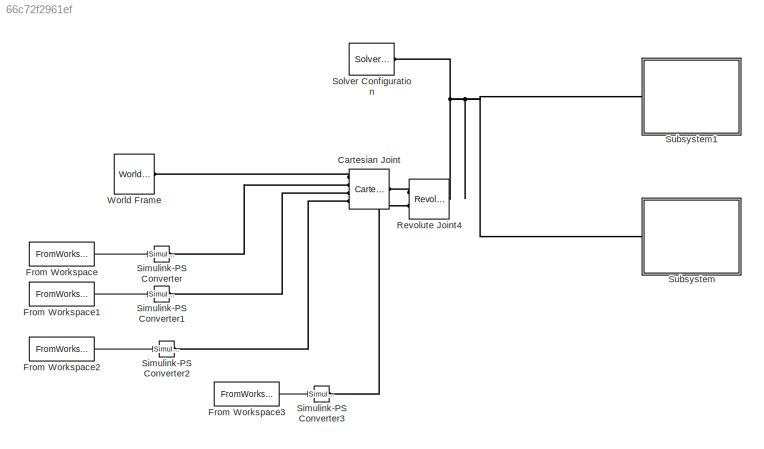
MODEL slx_66c72f2961ef
KIND model
CONFIG AbsTol = auto
CONFIG EnableMultiTasking = off
CONFIG FixedStep = auto
CONFIG MaxStep = auto
CONFIG MinStep = auto
CONFIG RelTol = 1e-3
CONFIG SampleTimeConstraint = Unconstrained
CONFIG Solver = VariableStepAuto
CONFIG SolverName = VariableStepAuto
CONFIG StartTime = 0.0
CONFIG StopTime = 13.95
BLOCK [Reference] Cartesian Joint  REF=sm_lib/Joints/Cartesian
Joint
  Ports = [0, 0, 0, 0, 0, 4, 1]
  SourceBlock = sm_lib/Joints/Cartesian\nJoint
  SourceProductBaseCode = MS
  SourceProductName = Simscape Multibody
  SourceType = Cartesian\nJoint
BLOCK [FromWorkspace] From Workspace
  SampleTime = 0
  VariableName = Hip_x
  ZeroCross = on
BLOCK [FromWorkspace] From Workspace1
  SampleTime = 0
  VariableName = Hip_y
  ZeroCross = on
BLOCK [FromWorkspace] From Workspace2
  SampleTime = 0
  VariableName = Hip_z
  ZeroCross = on
BLOCK [FromWorkspace] From Workspace3
  SampleTime = 0
  VariableName = Hip_yaw
  ZeroCross = on
BLOCK [Reference] Revolute Joint4  REF=sm_lib/Joints/Revolute Joint
  Ports = [0, 0, 0, 0, 0, 2, 1]
  SourceBlock = sm_lib/Joints/Revolute Joint
  SourceProductBaseCode = MS
  SourceProductName = Simscape Multibody
  SourceType = Revolute Joint
BLOCK [Reference] Simulink-PS Converter  REF=nesl_utility/Simulink-PS
Converter
  Ports = [1, 0, 0, 0, 0, 0, 1]
  SourceBlock = nesl_utility/Simulink-PS\nConverter
  SourceProductBaseCode = SS
  SourceProductName = Simscape
  SourceType = Simulink-PS\nConverter
BLOCK [Reference] Simulink-PS Converter1  REF=nesl_utility/Simulink-PS
Converter
  Ports = [1, 0, 0, 0, 0, 0, 1]
  SourceBlock = nesl_utility/Simulink-PS\nConverter
  SourceProductBaseCode = SS
  SourceProductName = Simscape
  SourceType = Simulink-PS\nConverter
BLOCK [Reference] Simulink-PS Converter2  REF=nesl_utility/Simulink-PS
Converter
  Ports = [1, 0, 0, 0, 0, 0, 1]
  SourceBlock = nesl_utility/Simulink-PS\nConverter
  SourceProductBaseCode = SS
  SourceProductName = Simscape
  SourceType = Simulink-PS\nConverter
BLOCK [Reference] Simulink-PS Converter3  REF=nesl_utility/Simulink-PS
Converter
  Ports = [1, 0, 0, 0, 0, 0, 1]
  SourceBlock = nesl_utility/Simulink-PS\nConverter
  SourceProductBaseCode = SS
  SourceProductName = Simscape
  SourceType = Simulink-PS\nConverter
BLOCK [Reference] Solver Configuration  REF=nesl_utility/Solver
Configuration
  Ports = [0, 0, 0, 0, 0, 0, 1]
  SourceBlock = nesl_utility/Solver\nConfiguration
  SourceProductBaseCode = SS
  SourceProductName = Simscape
  SourceType = Solver\nConfiguration
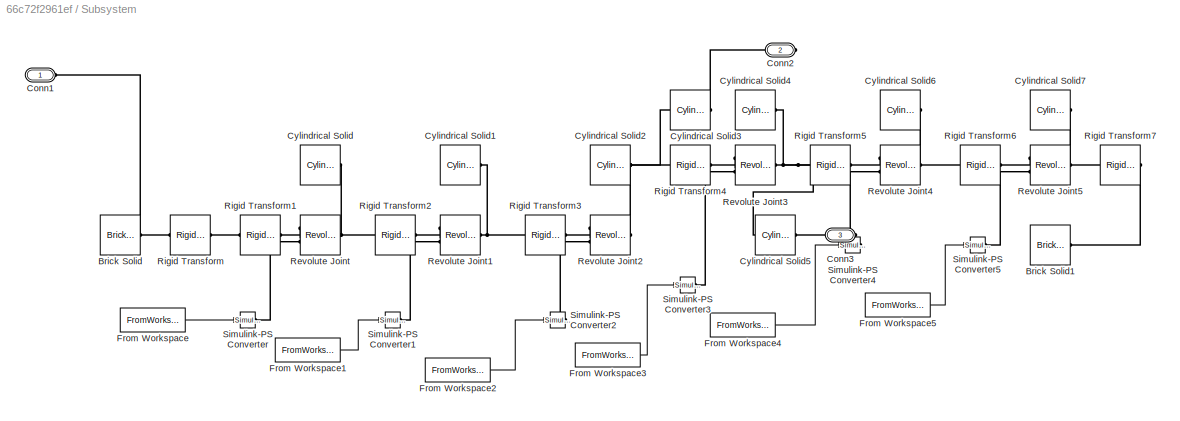
BLOCK [SubSystem] Subsystem
  Ports = [0, 0, 0, 0, 0, 1, 2]
  RequestExecContextInheritance = off
BLOCK [Reference] Subsystem/Brick Solid  REF=sm_lib/Body Elements/Brick Solid
  Ports = [0, 0, 0, 0, 0, 0, 1]
  SourceBlock = sm_lib/Body Elements/Brick Solid
  SourceProductBaseCode = MS
  SourceProductName = Simscape Multibody
  SourceType = Brick Solid
BLOCK [Reference] Subsystem/Brick Solid1  REF=sm_lib/Body Elements/Brick Solid
  Ports = [0, 0, 0, 0, 0, 0, 1]
  SourceBlock = sm_lib/Body Elements/Brick Solid
  SourceProductBaseCode = MS
  SourceProductName = Simscape Multibody
  SourceType = Brick Solid
BLOCK [PMIOPort] Subsystem/Conn1
  Side = Left
BLOCK [PMIOPort] Subsystem/Conn2
  Port = 2
  Side = Right
BLOCK [PMIOPort] Subsystem/Conn3
  Port = 3
  Side = Right
BLOCK [Reference] Subsystem/Cylindrical Solid  REF=sm_lib/Body Elements/Cylindrical Solid
  Ports = [0, 0, 0, 0, 0, 0, 1]
  SourceBlock = sm_lib/Body Elements/Cylindrical Solid
  SourceProductBaseCode = MS
  SourceProductName = Simscape Multibody
  SourceType = Cylindrical Solid
BLOCK [Reference] Subsystem/Cylindrical Solid1  REF=sm_lib/Body Elements/Cylindrical Solid
  Ports = [0, 0, 0, 0, 0, 0, 1]
  SourceBlock = sm_lib/Body Elements/Cylindrical Solid
  SourceProductBaseCode = MS
  SourceProductName = Simscape Multibody
  SourceType = Cylindrical Solid
BLOCK [Reference] Subsystem/Cylindrical Solid2  REF=sm_lib/Body Elements/Cylindrical Solid
  Ports = [0, 0, 0, 0, 0, 0, 1]
  SourceBlock = sm_lib/Body Elements/Cylindrical Solid
  SourceProductBaseCode = MS
  SourceProductName = Simscape Multibody
  SourceType = Cylindrical Solid
BLOCK [Reference] Subsystem/Cylindrical Solid3  REF=sm_lib/Body Elements/Cylindrical Solid
  Ports = [0, 0, 0, 0, 0, 1, 1]
  SourceBlock = sm_lib/Body Elements/Cylindrical Solid
  SourceProductBaseCode = MS
  SourceProductName = Simscape Multibody
  SourceType = Cylindrical Solid
BLOCK [Reference] Subsystem/Cylindrical Solid4  REF=sm_lib/Body Elements/Cylindrical Solid
  Ports = [0, 0, 0, 0, 0, 0, 1]
  SourceBlock = sm_lib/Body Elements/Cylindrical Solid
  SourceProductBaseCode = MS
  SourceProductName = Simscape Multibody
  SourceType = Cylindrical Solid
BLOCK [Reference] Subsystem/Cylindrical Solid5  REF=sm_lib/Body Elements/Cylindrical Solid
  Ports = [0, 0, 0, 0, 0, 1, 1]
  SourceBlock = sm_lib/Body Elements/Cylindrical Solid
  SourceProductBaseCode = MS
  SourceProductName = Simscape Multibody
  SourceType = Cylindrical Solid
BLOCK [Reference] Subsystem/Cylindrical Solid6  REF=sm_lib/Body Elements/Cylindrical Solid
  Ports = [0, 0, 0, 0, 0, 0, 1]
  SourceBlock = sm_lib/Body Elements/Cylindrical Solid
  SourceProductBaseCode = MS
  SourceProductName = Simscape Multibody
  SourceType = Cylindrical Solid
BLOCK [Reference] Subsystem/Cylindrical Solid7  REF=sm_lib/Body Elements/Cylindrical Solid
  Ports = [0, 0, 0, 0, 0, 0, 1]
  SourceBlock = sm_lib/Body Elements/Cylindrical Solid
  SourceProductBaseCode = MS
  SourceProductName = Simscape Multibody
  SourceType = Cylindrical Solid
BLOCK [FromWorkspace] Subsystem/From Workspace
  SampleTime = 0
  VariableName = Q_2
  ZeroCross = on
BLOCK [FromWorkspace] Subsystem/From Workspace1
  SampleTime = 0
  VariableName = Q_3
  ZeroCross = on
BLOCK [FromWorkspace] Subsystem/From Workspace2
  SampleTime = 0
  VariableName = Q_4
  ZeroCross = on
BLOCK [FromWorkspace] Subsystem/From Workspace3
  SampleTime = 0
  VariableName = Q_5
  ZeroCross = on
BLOCK [FromWorkspace] Subsystem/From Workspace4
  SampleTime = 0
  VariableName = Q_6
  ZeroCross = on
BLOCK [FromWorkspace] Subsystem/From Workspace5
  SampleTime = 0
  VariableName = Q_7
  ZeroCross = on
BLOCK [Reference] Subsystem/Revolute Joint  REF=sm_lib/Joints/Revolute Joint
  Ports = [0, 0, 0, 0, 0, 2, 1]
  SourceBlock = sm_lib/Joints/Revolute Joint
  SourceProductBaseCode = MS
  SourceProductName = Simscape Multibody
  SourceType = Revolute Joint
BLOCK [Reference] Subsystem/Revolute Joint1  REF=sm_lib/Joints/Revolute Joint
  Ports = [0, 0, 0, 0, 0, 2, 1]
  SourceBlock = sm_lib/Joints/Revolute Joint
  SourceProductBaseCode = MS
  SourceProductName = Simscape Multibody
  SourceType = Revolute Joint
BLOCK [Reference] Subsystem/Revolute Joint2  REF=sm_lib/Joints/Revolute Joint
  Ports = [0, 0, 0, 0, 0, 2, 1]
  SourceBlock = sm_lib/Joints/Revolute Joint
  SourceProductBaseCode = MS
  SourceProductName = Simscape Multibody
  SourceType = Revolute Joint
BLOCK [Reference] Subsystem/Revolute Joint3  REF=sm_lib/Joints/Revolute Joint
  Ports = [0, 0, 0, 0, 0, 2, 1]
  SourceBlock = sm_lib/Joints/Revolute Joint
  SourceProductBaseCode = MS
  SourceProductName = Simscape Multibody
  SourceType = Revolute Joint
BLOCK [Reference] Subsystem/Revolute Joint4  REF=sm_lib/Joints/Revolute Joint
  Ports = [0, 0, 0, 0, 0, 2, 1]
  SourceBlock = sm_lib/Joints/Revolute Joint
  SourceProductBaseCode = MS
  SourceProductName = Simscape Multibody
  SourceType = Revolute Joint
BLOCK [Reference] Subsystem/Revolute Joint5  REF=sm_lib/Joints/Revolute Joint
  Ports = [0, 0, 0, 0, 0, 2, 1]
  SourceBlock = sm_lib/Joints/Revolute Joint
  SourceProductBaseCode = MS
  SourceProductName = Simscape Multibody
  SourceType = Revolute Joint
BLOCK [Reference] Subsystem/Rigid Transform  REF=sm_lib/Frames and
Transforms/Rigid
Transform
  Ports = [0, 0, 0, 0, 0, 1, 1]
  SourceBlock = sm_lib/Frames and\nTransforms/Rigid\nTransform
  SourceProductBaseCode = MS
  SourceProductName = Simscape Multibody
  SourceType = Rigid\nTransform
BLOCK [Reference] Subsystem/Rigid Transform1  REF=sm_lib/Frames and
Transforms/Rigid
Transform
  Ports = [0, 0, 0, 0, 0, 1, 1]
  SourceBlock = sm_lib/Frames and\nTransforms/Rigid\nTransform
  SourceProductBaseCode = MS
  SourceProductName = Simscape Multibody
  SourceType = Rigid\nTransform
BLOCK [Reference] Subsystem/Rigid Transform2  REF=sm_lib/Frames and
Transforms/Rigid
Transform
  Ports = [0, 0, 0, 0, 0, 1, 1]
  SourceBlock = sm_lib/Frames and\nTransforms/Rigid\nTransform
  SourceProductBaseCode = MS
  SourceProductName = Simscape Multibody
  SourceType = Rigid\nTransform
BLOCK [Reference] Subsystem/Rigid Transform3  REF=sm_lib/Frames and
Transforms/Rigid
Transform
  Ports = [0, 0, 0, 0, 0, 1, 1]
  SourceBlock = sm_lib/Frames and\nTransforms/Rigid\nTransform
  SourceProductBaseCode = MS
  SourceProductName = Simscape Multibody
  SourceType = Rigid\nTransform
BLOCK [Reference] Subsystem/Rigid Transform4  REF=sm_lib/Frames and
Transforms/Rigid
Transform
  Ports = [0, 0, 0, 0, 0, 1, 1]
  SourceBlock = sm_lib/Frames and\nTransforms/Rigid\nTransform
  SourceProductBaseCode = MS
  SourceProductName = Simscape Multibody
  SourceType = Rigid\nTransform
BLOCK [Reference] Subsystem/Rigid Transform5  REF=sm_lib/Frames and
Transforms/Rigid
Transform
  Ports = [0, 0, 0, 0, 0, 1, 1]
  SourceBlock = sm_lib/Frames and\nTransforms/Rigid\nTransform
  SourceProductBaseCode = MS
  SourceProductName = Simscape Multibody
  SourceType = Rigid\nTransform
BLOCK [Reference] Subsystem/Rigid Transform6  REF=sm_lib/Frames and
Transforms/Rigid
Transform
  Ports = [0, 0, 0, 0, 0, 1, 1]
  SourceBlock = sm_lib/Frames and\nTransforms/Rigid\nTransform
  SourceProductBaseCode = MS
  SourceProductName = Simscape Multibody
  SourceType = Rigid\nTransform
BLOCK [Reference] Subsystem/Rigid Transform7  REF=sm_lib/Frames and
Transforms/Rigid
Transform
  Ports = [0, 0, 0, 0, 0, 1, 1]
  SourceBlock = sm_lib/Frames and\nTransforms/Rigid\nTransform
  SourceProductBaseCode = MS
  SourceProductName = Simscape Multibody
  SourceType = Rigid\nTransform
BLOCK [Reference] Subsystem/Simulink-PS Converter  REF=nesl_utility/Simulink-PS
Converter
  Ports = [1, 0, 0, 0, 0, 0, 1]
  SourceBlock = nesl_utility/Simulink-PS\nConverter
  SourceProductBaseCode = SS
  SourceProductName = Simscape
  SourceType = Simulink-PS\nConverter
BLOCK [Reference] Subsystem/Simulink-PS Converter1  REF=nesl_utility/Simulink-PS
Converter
  Ports = [1, 0, 0, 0, 0, 0, 1]
  SourceBlock = nesl_utility/Simulink-PS\nConverter
  SourceProductBaseCode = SS
  SourceProductName = Simscape
  SourceType = Simulink-PS\nConverter
BLOCK [Reference] Subsystem/Simulink-PS Converter2  REF=nesl_utility/Simulink-PS
Converter
  Ports = [1, 0, 0, 0, 0, 0, 1]
  SourceBlock = nesl_utility/Simulink-PS\nConverter
  SourceProductBaseCode = SS
  SourceProductName = Simscape
  SourceType = Simulink-PS\nConverter
BLOCK [Reference] Subsystem/Simulink-PS Converter3  REF=nesl_utility/Simulink-PS
Converter
  Ports = [1, 0, 0, 0, 0, 0, 1]
  SourceBlock = nesl_utility/Simulink-PS\nConverter
  SourceProductBaseCode = SS
  SourceProductName = Simscape
  SourceType = Simulink-PS\nConverter
BLOCK [Reference] Subsystem/Simulink-PS Converter4  REF=nesl_utility/Simulink-PS
Converter
  Ports = [1, 0, 0, 0, 0, 0, 1]
  SourceBlock = nesl_utility/Simulink-PS\nConverter
  SourceProductBaseCode = SS
  SourceProductName = Simscape
  SourceType = Simulink-PS\nConverter
BLOCK [Reference] Subsystem/Simulink-PS Converter5  REF=nesl_utility/Simulink-PS
Converter
  Ports = [1, 0, 0, 0, 0, 0, 1]
  SourceBlock = nesl_utility/Simulink-PS\nConverter
  SourceProductBaseCode = SS
  SourceProductName = Simscape
  SourceType = Simulink-PS\nConverter
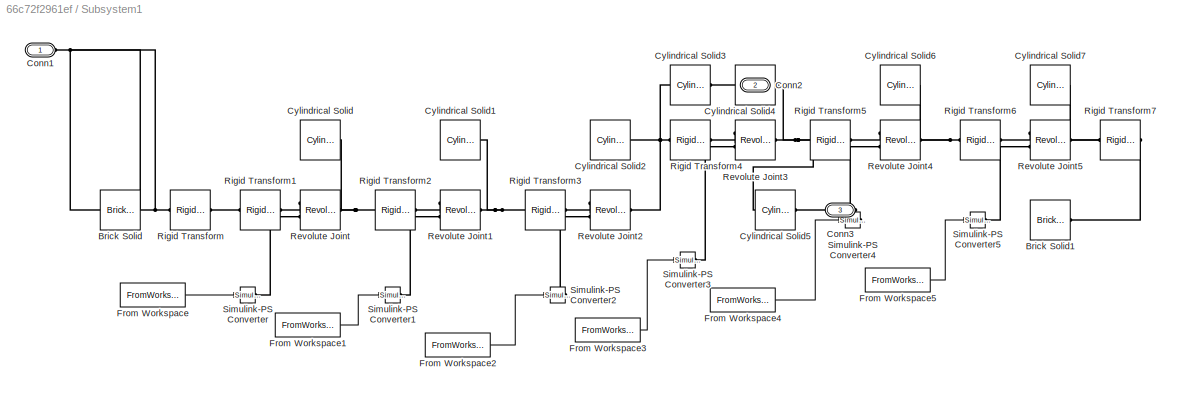
BLOCK [SubSystem] Subsystem1
  Ports = [0, 0, 0, 0, 0, 1, 2]
  RequestExecContextInheritance = off
BLOCK [Reference] Subsystem1/Brick Solid  REF=sm_lib/Body Elements/Brick Solid
  Ports = [0, 0, 0, 0, 0, 0, 1]
  SourceBlock = sm_lib/Body Elements/Brick Solid
  SourceProductBaseCode = MS
  SourceProductName = Simscape Multibody
  SourceType = Brick Solid
BLOCK [Reference] Subsystem1/Brick Solid1  REF=sm_lib/Body Elements/Brick Solid
  Ports = [0, 0, 0, 0, 0, 0, 1]
  SourceBlock = sm_lib/Body Elements/Brick Solid
  SourceProductBaseCode = MS
  SourceProductName = Simscape Multibody
  SourceType = Brick Solid
BLOCK [PMIOPort] Subsystem1/Conn1
  Side = Left
BLOCK [PMIOPort] Subsystem1/Conn2
  Port = 2
  Side = Right
BLOCK [PMIOPort] Subsystem1/Conn3
  Port = 3
  Side = Right
BLOCK [Reference] Subsystem1/Cylindrical Solid  REF=sm_lib/Body Elements/Cylindrical Solid
  Ports = [0, 0, 0, 0, 0, 0, 1]
  SourceBlock = sm_lib/Body Elements/Cylindrical Solid
  SourceProductBaseCode = MS
  SourceProductName = Simscape Multibody
  SourceType = Cylindrical Solid
BLOCK [Reference] Subsystem1/Cylindrical Solid1  REF=sm_lib/Body Elements/Cylindrical Solid
  Ports = [0, 0, 0, 0, 0, 0, 1]
  SourceBlock = sm_lib/Body Elements/Cylindrical Solid
  SourceProductBaseCode = MS
  SourceProductName = Simscape Multibody
  SourceType = Cylindrical Solid
BLOCK [Reference] Subsystem1/Cylindrical Solid2  REF=sm_lib/Body Elements/Cylindrical Solid
  Ports = [0, 0, 0, 0, 0, 0, 1]
  SourceBlock = sm_lib/Body Elements/Cylindrical Solid
  SourceProductBaseCode = MS
  SourceProductName = Simscape Multibody
  SourceType = Cylindrical Solid
BLOCK [Reference] Subsystem1/Cylindrical Solid3  REF=sm_lib/Body Elements/Cylindrical Solid
  Ports = [0, 0, 0, 0, 0, 1, 1]
  SourceBlock = sm_lib/Body Elements/Cylindrical Solid
  SourceProductBaseCode = MS
  SourceProductName = Simscape Multibody
  SourceType = Cylindrical Solid
BLOCK [Reference] Subsystem1/Cylindrical Solid4  REF=sm_lib/Body Elements/Cylindrical Solid
  Ports = [0, 0, 0, 0, 0, 0, 1]
  SourceBlock = sm_lib/Body Elements/Cylindrical Solid
  SourceProductBaseCode = MS
  SourceProductName = Simscape Multibody
  SourceType = Cylindrical Solid
BLOCK [Reference] Subsystem1/Cylindrical Solid5  REF=sm_lib/Body Elements/Cylindrical Solid
  Ports = [0, 0, 0, 0, 0, 1, 1]
  SourceBlock = sm_lib/Body Elements/Cylindrical Solid
  SourceProductBaseCode = MS
  SourceProductName = Simscape Multibody
  SourceType = Cylindrical Solid
BLOCK [Reference] Subsystem1/Cylindrical Solid6  REF=sm_lib/Body Elements/Cylindrical Solid
  Ports = [0, 0, 0, 0, 0, 0, 1]
  SourceBlock = sm_lib/Body Elements/Cylindrical Solid
  SourceProductBaseCode = MS
  SourceProductName = Simscape Multibody
  SourceType = Cylindrical Solid
BLOCK [Reference] Subsystem1/Cylindrical Solid7  REF=sm_lib/Body Elements/Cylindrical Solid
  Ports = [0, 0, 0, 0, 0, 0, 1]
  SourceBlock = sm_lib/Body Elements/Cylindrical Solid
  SourceProductBaseCode = MS
  SourceProductName = Simscape Multibody
  SourceType = Cylindrical Solid
BLOCK [FromWorkspace] Subsystem1/From Workspace
  SampleTime = 0
  VariableName = Q_8
  ZeroCross = on
BLOCK [FromWorkspace] Subsystem1/From Workspace1
  SampleTime = 0
  VariableName = Q_9
  ZeroCross = on
BLOCK [FromWorkspace] Subsystem1/From Workspace2
  SampleTime = 0
  VariableName = Q_10
  ZeroCross = on
BLOCK [FromWorkspace] Subsystem1/From Workspace3
  SampleTime = 0
  VariableName = Q_11
  ZeroCross = on
BLOCK [FromWorkspace] Subsystem1/From Workspace4
  SampleTime = 0
  VariableName = Q_12
  ZeroCross = on
BLOCK [FromWorkspace] Subsystem1/From Workspace5
  SampleTime = 0
  VariableName = Q_13
  ZeroCross = on
BLOCK [Reference] Subsystem1/Revolute Joint  REF=sm_lib/Joints/Revolute Joint
  Ports = [0, 0, 0, 0, 0, 2, 1]
  SourceBlock = sm_lib/Joints/Revolute Joint
  SourceProductBaseCode = MS
  SourceProductName = Simscape Multibody
  SourceType = Revolute Joint
BLOCK [Reference] Subsystem1/Revolute Joint1  REF=sm_lib/Joints/Revolute Joint
  Ports = [0, 0, 0, 0, 0, 2, 1]
  SourceBlock = sm_lib/Joints/Revolute Joint
  SourceProductBaseCode = MS
  SourceProductName = Simscape Multibody
  SourceType = Revolute Joint
BLOCK [Reference] Subsystem1/Revolute Joint2  REF=sm_lib/Joints/Revolute Joint
  Ports = [0, 0, 0, 0, 0, 2, 1]
  SourceBlock = sm_lib/Joints/Revolute Joint
  SourceProductBaseCode = MS
  SourceProductName = Simscape Multibody
  SourceType = Revolute Joint
BLOCK [Reference] Subsystem1/Revolute Joint3  REF=sm_lib/Joints/Revolute Joint
  Ports = [0, 0, 0, 0, 0, 2, 1]
  SourceBlock = sm_lib/Joints/Revolute Joint
  SourceProductBaseCode = MS
  SourceProductName = Simscape Multibody
  SourceType = Revolute Joint
BLOCK [Reference] Subsystem1/Revolute Joint4  REF=sm_lib/Joints/Revolute Joint
  Ports = [0, 0, 0, 0, 0, 2, 1]
  SourceBlock = sm_lib/Joints/Revolute Joint
  SourceProductBaseCode = MS
  SourceProductName = Simscape Multibody
  SourceType = Revolute Joint
BLOCK [Reference] Subsystem1/Revolute Joint5  REF=sm_lib/Joints/Revolute Joint
  Ports = [0, 0, 0, 0, 0, 2, 1]
  SourceBlock = sm_lib/Joints/Revolute Joint
  SourceProductBaseCode = MS
  SourceProductName = Simscape Multibody
  SourceType = Revolute Joint
BLOCK [Reference] Subsystem1/Rigid Transform  REF=sm_lib/Frames and
Transforms/Rigid
Transform
  Ports = [0, 0, 0, 0, 0, 1, 1]
  SourceBlock = sm_lib/Frames and\nTransforms/Rigid\nTransform
  SourceProductBaseCode = MS
  SourceProductName = Simscape Multibody
  SourceType = Rigid\nTransform
BLOCK [Reference] Subsystem1/Rigid Transform1  REF=sm_lib/Frames and
Transforms/Rigid
Transform
  Ports = [0, 0, 0, 0, 0, 1, 1]
  SourceBlock = sm_lib/Frames and\nTransforms/Rigid\nTransform
  SourceProductBaseCode = MS
  SourceProductName = Simscape Multibody
  SourceType = Rigid\nTransform
BLOCK [Reference] Subsystem1/Rigid Transform2  REF=sm_lib/Frames and
Transforms/Rigid
Transform
  Ports = [0, 0, 0, 0, 0, 1, 1]
  SourceBlock = sm_lib/Frames and\nTransforms/Rigid\nTransform
  SourceProductBaseCode = MS
  SourceProductName = Simscape Multibody
  SourceType = Rigid\nTransform
BLOCK [Reference] Subsystem1/Rigid Transform3  REF=sm_lib/Frames and
Transforms/Rigid
Transform
  Ports = [0, 0, 0, 0, 0, 1, 1]
  SourceBlock = sm_lib/Frames and\nTransforms/Rigid\nTransform
  SourceProductBaseCode = MS
  SourceProductName = Simscape Multibody
  SourceType = Rigid\nTransform
BLOCK [Reference] Subsystem1/Rigid Transform4  REF=sm_lib/Frames and
Transforms/Rigid
Transform
  Ports = [0, 0, 0, 0, 0, 1, 1]
  SourceBlock = sm_lib/Frames and\nTransforms/Rigid\nTransform
  SourceProductBaseCode = MS
  SourceProductName = Simscape Multibody
  SourceType = Rigid\nTransform
BLOCK [Reference] Subsystem1/Rigid Transform5  REF=sm_lib/Frames and
Transforms/Rigid
Transform
  Ports = [0, 0, 0, 0, 0, 1, 1]
  SourceBlock = sm_lib/Frames and\nTransforms/Rigid\nTransform
  SourceProductBaseCode = MS
  SourceProductName = Simscape Multibody
  SourceType = Rigid\nTransform
BLOCK [Reference] Subsystem1/Rigid Transform6  REF=sm_lib/Frames and
Transforms/Rigid
Transform
  Ports = [0, 0, 0, 0, 0, 1, 1]
  SourceBlock = sm_lib/Frames and\nTransforms/Rigid\nTransform
  SourceProductBaseCode = MS
  SourceProductName = Simscape Multibody
  SourceType = Rigid\nTransform
BLOCK [Reference] Subsystem1/Rigid Transform7  REF=sm_lib/Frames and
Transforms/Rigid
Transform
  Ports = [0, 0, 0, 0, 0, 1, 1]
  SourceBlock = sm_lib/Frames and\nTransforms/Rigid\nTransform
  SourceProductBaseCode = MS
  SourceProductName = Simscape Multibody
  SourceType = Rigid\nTransform
BLOCK [Reference] Subsystem1/Simulink-PS Converter  REF=nesl_utility/Simulink-PS
Converter
  Ports = [1, 0, 0, 0, 0, 0, 1]
  SourceBlock = nesl_utility/Simulink-PS\nConverter
  SourceProductBaseCode = SS
  SourceProductName = Simscape
  SourceType = Simulink-PS\nConverter
BLOCK [Reference] Subsystem1/Simulink-PS Converter1  REF=nesl_utility/Simulink-PS
Converter
  Ports = [1, 0, 0, 0, 0, 0, 1]
  SourceBlock = nesl_utility/Simulink-PS\nConverter
  SourceProductBaseCode = SS
  SourceProductName = Simscape
  SourceType = Simulink-PS\nConverter
BLOCK [Reference] Subsystem1/Simulink-PS Converter2  REF=nesl_utility/Simulink-PS
Converter
  Ports = [1, 0, 0, 0, 0, 0, 1]
  SourceBlock = nesl_utility/Simulink-PS\nConverter
  SourceProductBaseCode = SS
  SourceProductName = Simscape
  SourceType = Simulink-PS\nConverter
BLOCK [Reference] Subsystem1/Simulink-PS Converter3  REF=nesl_utility/Simulink-PS
Converter
  Ports = [1, 0, 0, 0, 0, 0, 1]
  SourceBlock = nesl_utility/Simulink-PS\nConverter
  SourceProductBaseCode = SS
  SourceProductName = Simscape
  SourceType = Simulink-PS\nConverter
BLOCK [Reference] Subsystem1/Simulink-PS Converter4  REF=nesl_utility/Simulink-PS
Converter
  Ports = [1, 0, 0, 0, 0, 0, 1]
  SourceBlock = nesl_utility/Simulink-PS\nConverter
  SourceProductBaseCode = SS
  SourceProductName = Simscape
  SourceType = Simulink-PS\nConverter
BLOCK [Reference] Subsystem1/Simulink-PS Converter5  REF=nesl_utility/Simulink-PS
Converter
  Ports = [1, 0, 0, 0, 0, 0, 1]
  SourceBlock = nesl_utility/Simulink-PS\nConverter
  SourceProductBaseCode = SS
  SourceProductName = Simscape
  SourceType = Simulink-PS\nConverter
BLOCK [Reference] World Frame  REF=sm_lib/Frames and
Transforms/World Frame
  Ports = [0, 0, 0, 0, 0, 0, 1]
  SourceBlock = sm_lib/Frames and\nTransforms/World Frame
  SourceProductBaseCode = MS
  SourceProductName = Simscape Multibody
  SourceType = World Frame
LINE From Workspace1:1 -> Simulink-PS Converter1:1
LINE From Workspace2:1 -> Simulink-PS Converter2:1
LINE From Workspace3:1 -> Simulink-PS Converter3:1
LINE From Workspace:1 -> Simulink-PS Converter:1
LINE Subsystem/From Workspace1:1 -> Subsystem/Simulink-PS Converter1:1
LINE Subsystem/From Workspace2:1 -> Subsystem/Simulink-PS Converter2:1
LINE Subsystem/From Workspace3:1 -> Subsystem/Simulink-PS Converter3:1
LINE Subsystem/From Workspace4:1 -> Subsystem/Simulink-PS Converter4:1
LINE Subsystem/From Workspace5:1 -> Subsystem/Simulink-PS Converter5:1
LINE Subsystem/From Workspace:1 -> Subsystem/Simulink-PS Converter:1
LINE Subsystem1/From Workspace1:1 -> Subsystem1/Simulink-PS Converter1:1
LINE Subsystem1/From Workspace2:1 -> Subsystem1/Simulink-PS Converter2:1
LINE Subsystem1/From Workspace3:1 -> Subsystem1/Simulink-PS Converter3:1
LINE Subsystem1/From Workspace4:1 -> Subsystem1/Simulink-PS Converter4:1
LINE Subsystem1/From Workspace5:1 -> Subsystem1/Simulink-PS Converter5:1
LINE Subsystem1/From Workspace:1 -> Subsystem1/Simulink-PS Converter:1
PLINE Cartesian Joint:LConn1 -- World Frame:RConn1
PLINE Cartesian Joint:LConn2 -- Simulink-PS Converter:RConn1
PLINE Cartesian Joint:LConn3 -- Simulink-PS Converter1:RConn1
PLINE Cartesian Joint:LConn4 -- Simulink-PS Converter2:RConn1
PLINE Cartesian Joint:RConn1 -- Revolute Joint4:LConn1
PLINE Revolute Joint4:LConn2 -- Simulink-PS Converter3:RConn1
PNET net1: Revolute Joint4:RConn1 -- Solver Configuration:RConn1 -- Subsystem1:LConn1 -- Subsystem:LConn1
PLINE Subsystem/Brick Solid1:RConn1 -- Subsystem/Rigid Transform7:RConn1
PNET net2: Subsystem/Brick Solid:RConn1 -- Subsystem/Conn1:RConn1 -- Subsystem/Rigid Transform:LConn1
PLINE Subsystem/Conn2:RConn1 -- Subsystem/Cylindrical Solid3:RConn1
PLINE Subsystem/Conn3:RConn1 -- Subsystem/Cylindrical Solid5:RConn1
PNET net3: Subsystem/Cylindrical Solid1:RConn1 -- Subsystem/Revolute Joint1:RConn1 -- Subsystem/Rigid Transform3:LConn1
PNET net4: Subsystem/Cylindrical Solid2:RConn1 -- Subsystem/Cylindrical Solid3:LConn1 -- Subsystem/Revolute Joint2:RConn1 -- Subsystem/Rigid Transform4:LConn1
PNET net5: Subsystem/Cylindrical Solid4:RConn1 -- Subsystem/Cylindrical Solid5:LConn1 -- Subsystem/Revolute Joint3:RConn1 -- Subsystem/Rigid Transform5:LConn1
PNET net6: Subsystem/Cylindrical Solid6:RConn1 -- Subsystem/Revolute Joint4:RConn1 -- Subsystem/Rigid Transform6:LConn1
PNET net7: Subsystem/Cylindrical Solid7:RConn1 -- Subsystem/Revolute Joint5:RConn1 -- Subsystem/Rigid Transform7:LConn1
PNET net8: Subsystem/Cylindrical Solid:RConn1 -- Subsystem/Revolute Joint:RConn1 -- Subsystem/Rigid Transform2:LConn1
PLINE Subsystem/Revolute Joint1:LConn1 -- Subsystem/Rigid Transform2:RConn1
PLINE Subsystem/Revolute Joint1:LConn2 -- Subsystem/Simulink-PS Converter1:RConn1
PLINE Subsystem/Revolute Joint2:LConn1 -- Subsystem/Rigid Transform3:RConn1
PLINE Subsystem/Revolute Joint2:LConn2 -- Subsystem/Simulink-PS Converter2:RConn1
PLINE Subsystem/Revolute Joint3:LConn1 -- Subsystem/Rigid Transform4:RConn1
PLINE Subsystem/Revolute Joint3:LConn2 -- Subsystem/Simulink-PS Converter3:RConn1
PLINE Subsystem/Revolute Joint4:LConn1 -- Subsystem/Rigid Transform5:RConn1
PLINE Subsystem/Revolute Joint4:LConn2 -- Subsystem/Simulink-PS Converter4:RConn1
PLINE Subsystem/Revolute Joint5:LConn1 -- Subsystem/Rigid Transform6:RConn1
PLINE Subsystem/Revolute Joint5:LConn2 -- Subsystem/Simulink-PS Converter5:RConn1
PLINE Subsystem/Revolute Joint:LConn1 -- Subsystem/Rigid Transform1:RConn1
PLINE Subsystem/Revolute Joint:LConn2 -- Subsystem/Simulink-PS Converter:RConn1
PLINE Subsystem/Rigid Transform1:LConn1 -- Subsystem/Rigid Transform:RConn1
PLINE Subsystem1/Brick Solid1:RConn1 -- Subsystem1/Rigid Transform7:RConn1
PNET net9: Subsystem1/Brick Solid:RConn1 -- Subsystem1/Conn1:RConn1 -- Subsystem1/Rigid Transform:LConn1
PLINE Subsystem1/Conn2:RConn1 -- Subsystem1/Cylindrical Solid3:RConn1
PLINE Subsystem1/Conn3:RConn1 -- Subsystem1/Cylindrical Solid5:RConn1
PNET net10: Subsystem1/Cylindrical Solid1:RConn1 -- Subsystem1/Revolute Joint1:RConn1 -- Subsystem1/Rigid Transform3:LConn1
PNET net11: Subsystem1/Cylindrical Solid2:RConn1 -- Subsystem1/Cylindrical Solid3:LConn1 -- Subsystem1/Revolute Joint2:RConn1 -- Subsystem1/Rigid Transform4:LConn1
PNET net12: Subsystem1/Cylindrical Solid4:RConn1 -- Subsystem1/Cylindrical Solid5:LConn1 -- Subsystem1/Revolute Joint3:RConn1 -- Subsystem1/Rigid Transform5:LConn1
PNET net13: Subsystem1/Cylindrical Solid6:RConn1 -- Subsystem1/Revolute Joint4:RConn1 -- Subsystem1/Rigid Transform6:LConn1
PNET net14: Subsystem1/Cylindrical Solid7:RConn1 -- Subsystem1/Revolute Joint5:RConn1 -- Subsystem1/Rigid Transform7:LConn1
PNET net15: Subsystem1/Cylindrical Solid:RConn1 -- Subsystem1/Revolute Joint:RConn1 -- Subsystem1/Rigid Transform2:LConn1
PLINE Subsystem1/Revolute Joint1:LConn1 -- Subsystem1/Rigid Transform2:RConn1
PLINE Subsystem1/Revolute Joint1:LConn2 -- Subsystem1/Simulink-PS Converter1:RConn1
PLINE Subsystem1/Revolute Joint2:LConn1 -- Subsystem1/Rigid Transform3:RConn1
PLINE Subsystem1/Revolute Joint2:LConn2 -- Subsystem1/Simulink-PS Converter2:RConn1
PLINE Subsystem1/Revolute Joint3:LConn1 -- Subsystem1/Rigid Transform4:RConn1
PLINE Subsystem1/Revolute Joint3:LConn2 -- Subsystem1/Simulink-PS Converter3:RConn1
PLINE Subsystem1/Revolute Joint4:LConn1 -- Subsystem1/Rigid Transform5:RConn1
PLINE Subsystem1/Revolute Joint4:LConn2 -- Subsystem1/Simulink-PS Converter4:RConn1
PLINE Subsystem1/Revolute Joint5:LConn1 -- Subsystem1/Rigid Transform6:RConn1
PLINE Subsystem1/Revolute Joint5:LConn2 -- Subsystem1/Simulink-PS Converter5:RConn1
PLINE Subsystem1/Revolute Joint:LConn1 -- Subsystem1/Rigid Transform1:RConn1
PLINE Subsystem1/Revolute Joint:LConn2 -- Subsystem1/Simulink-PS Converter:RConn1
PLINE Subsystem1/Rigid Transform1:LConn1 -- Subsystem1/Rigid Transform:RConn1
note: PNET lines group multi-terminal physical nets as a canonical sorted terminal list (undirected conserving connections); 2-terminal nets keep the pairwise PLINE form
